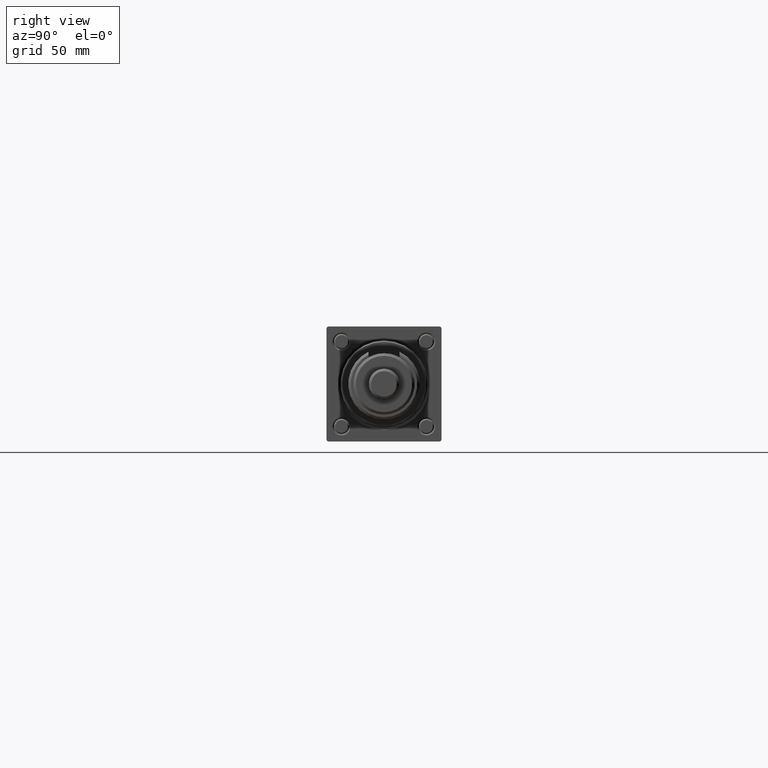
[diagram: clean part render]
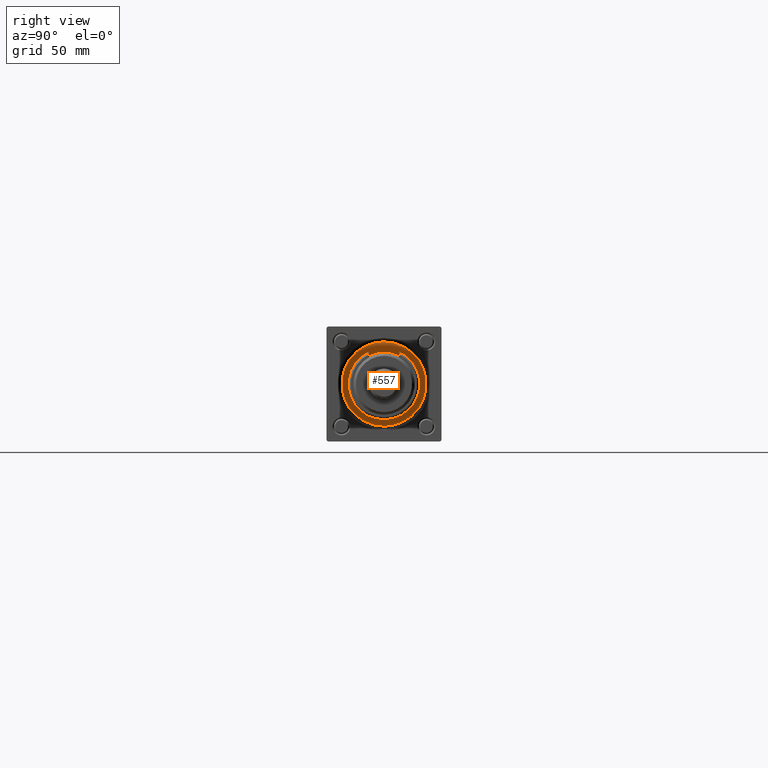
[diagram: same view with one face highlighted and labeled with its STEP entity id]
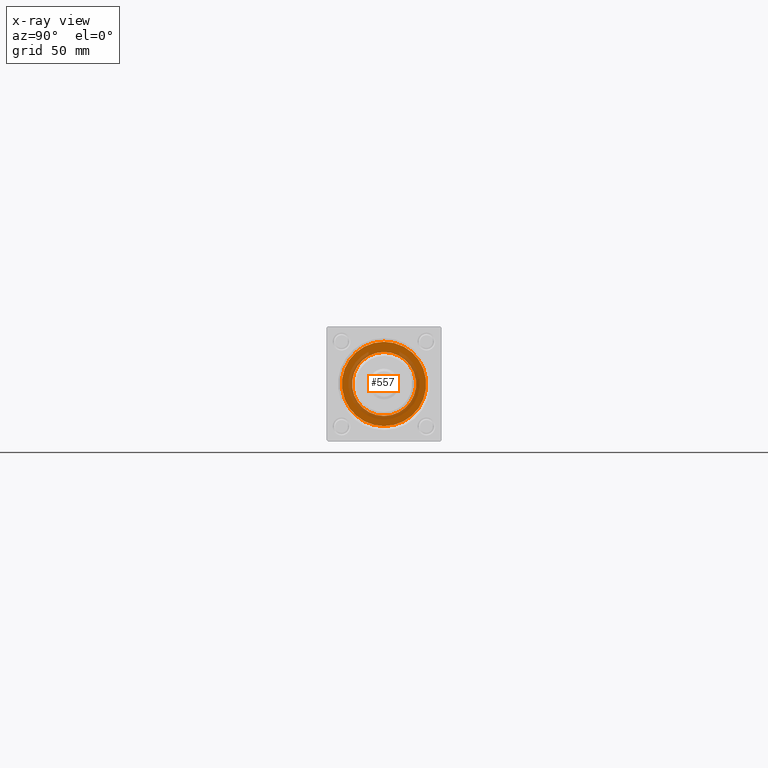
[diagram: x-ray of the same camera — body ghosted, the highlighted face saturated]
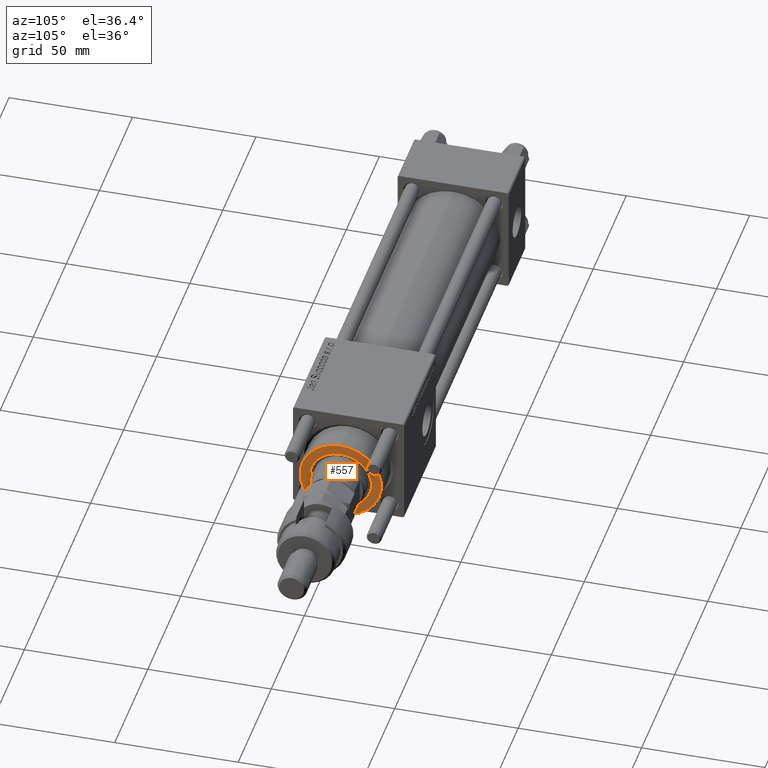
[diagram: same view with one face highlighted and labeled with its STEP entity id]
A machine part, right view. The second image highlights one B-rep face of the part: STEP entity #557.
The next image is the same camera in x-ray: the body ghosted, the highlighted face saturated — about 29% of this face is hidden behind the body in this view.
A second angle (auxiliary view) of the same face is appended — the face is thin or edge-on in the first view.
In plain terms, the highlighted planar face has unit normal (1, 0, 0).
Its self-contained STEP definition (entity closure, byte-faithful):
#60 = DIRECTION ( 'NONE',  ( 0.000000000000000000, 0.000000000000000000, 1.000000000000000000 ) ) ;
#557 = ADVANCED_FACE ( 'NONE', ( #7748, #21623 ), #40005, .T. ) ;
#1218 = ORIENTED_EDGE ( 'NONE', *, *, #33364, .T. ) ;
#2260 = CARTESIAN_POINT ( 'NONE',  ( -12.50000000000000000, 1.530808498934191521E-15, 40.70000000000000284 ) ) ;
#3533 = DIRECTION ( 'NONE',  ( 0.000000000000000000, 0.000000000000000000, 1.000000000000000000 ) ) ;
#4242 = EDGE_CURVE ( 'NONE', #9243, #26878, #9334, .T. ) ;
#4887 = DIRECTION ( 'NONE',  ( 1.000000000000000000, 0.000000000000000000, 0.000000000000000000 ) ) ;
#6504 = CIRCLE ( 'NONE', #58492, 12.50000000000000000 ) ;
#7125 = CIRCLE ( 'NONE', #38894, 16.49999999999999289 ) ;
#7748 = FACE_BOUND ( 'NONE', #46769, .T. ) ;
#9243 = VERTEX_POINT ( 'NONE', #39098 ) ;
#9334 = CIRCLE ( 'NONE', #50742, 16.49999999999999289 ) ;
#9713 = ORIENTED_EDGE ( 'NONE', *, *, #11453, .F. ) ;
#11229 = DIRECTION ( 'NONE',  ( 0.000000000000000000, 0.000000000000000000, 1.000000000000000000 ) ) ;
#11453 = EDGE_CURVE ( 'NONE', #31786, #50467, #6504, .T. ) ;
#12211 = ORIENTED_EDGE ( 'NONE', *, *, #40871, .F. ) ;
#13698 = AXIS2_PLACEMENT_3D ( 'NONE', #23287, #60, #18448 ) ;
#16745 = CARTESIAN_POINT ( 'NONE',  ( 0.000000000000000000, 0.000000000000000000, 40.70000000000000284 ) ) ;
#18445 = CARTESIAN_POINT ( 'NONE',  ( 0.000000000000000000, 0.000000000000000000, 40.70000000000000284 ) ) ;
#18448 = DIRECTION ( 'NONE',  ( 1.000000000000000000, 0.000000000000000000, 0.000000000000000000 ) ) ;
#21623 = FACE_OUTER_BOUND ( 'NONE', #32077, .T. ) ;
#21781 = CARTESIAN_POINT ( 'NONE',  ( 0.000000000000000000, 0.000000000000000000, 40.70000000000000284 ) ) ;
#23287 = CARTESIAN_POINT ( 'NONE',  ( 0.000000000000000000, 0.000000000000000000, 40.70000000000000284 ) ) ;
#23362 = CIRCLE ( 'NONE', #13698, 12.50000000000000000 ) ;
#26448 = CARTESIAN_POINT ( 'NONE',  ( 0.000000000000000000, 0.000000000000000000, 40.70000000000000284 ) ) ;
#26878 = VERTEX_POINT ( 'NONE', #57075 ) ;
#30041 = DIRECTION ( 'NONE',  ( 0.000000000000000000, 0.000000000000000000, 1.000000000000000000 ) ) ;
#31786 = VERTEX_POINT ( 'NONE', #2260 ) ;
#32077 = EDGE_LOOP ( 'NONE', ( #54720, #1218 ) ) ;
#33364 = EDGE_CURVE ( 'NONE', #26878, #9243, #7125, .T. ) ;
#34205 = AXIS2_PLACEMENT_3D ( 'NONE', #26448, #3533, #40300 ) ;
#38894 = AXIS2_PLACEMENT_3D ( 'NONE', #18445, #46191, #4887 ) ;
#39098 = CARTESIAN_POINT ( 'NONE',  ( -16.49999999999999289, 0.000000000000000000, 40.70000000000000284 ) ) ;
#39277 = DIRECTION ( 'NONE',  ( 1.000000000000000000, 0.000000000000000000, 0.000000000000000000 ) ) ;
#39389 = DIRECTION ( 'NONE',  ( 1.000000000000000000, 0.000000000000000000, 0.000000000000000000 ) ) ;
#40005 = PLANE ( 'NONE',  #34205 ) ;
#40300 = DIRECTION ( 'NONE',  ( 1.000000000000000000, 0.000000000000000000, -0.000000000000000000 ) ) ;
#40871 = EDGE_CURVE ( 'NONE', #50467, #31786, #23362, .T. ) ;
#46191 = DIRECTION ( 'NONE',  ( 0.000000000000000000, 0.000000000000000000, 1.000000000000000000 ) ) ;
#46769 = EDGE_LOOP ( 'NONE', ( #12211, #9713 ) ) ;
#50467 = VERTEX_POINT ( 'NONE', #53730 ) ;
#50742 = AXIS2_PLACEMENT_3D ( 'NONE', #16745, #30041, #39389 ) ;
#53730 = CARTESIAN_POINT ( 'NONE',  ( 12.50000000000000000, 0.000000000000000000, 40.70000000000000284 ) ) ;
#54720 = ORIENTED_EDGE ( 'NONE', *, *, #4242, .T. ) ;
#57075 = CARTESIAN_POINT ( 'NONE',  ( 16.49999999999999289, 2.051283388571816493E-15, 40.70000000000000284 ) ) ;
#58492 = AXIS2_PLACEMENT_3D ( 'NONE', #21781, #11229, #39277 ) ;